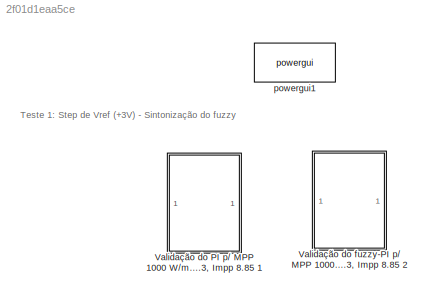
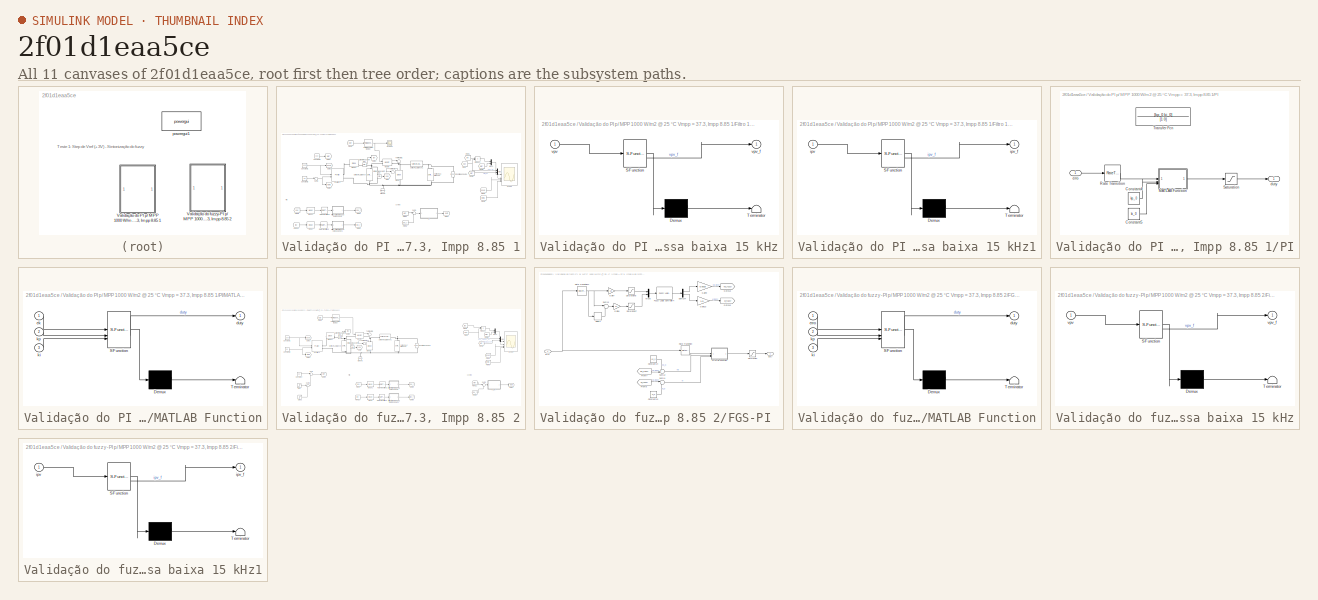
[diagram: thumbnail index - all 11 canvases of the model, root first then tree order]
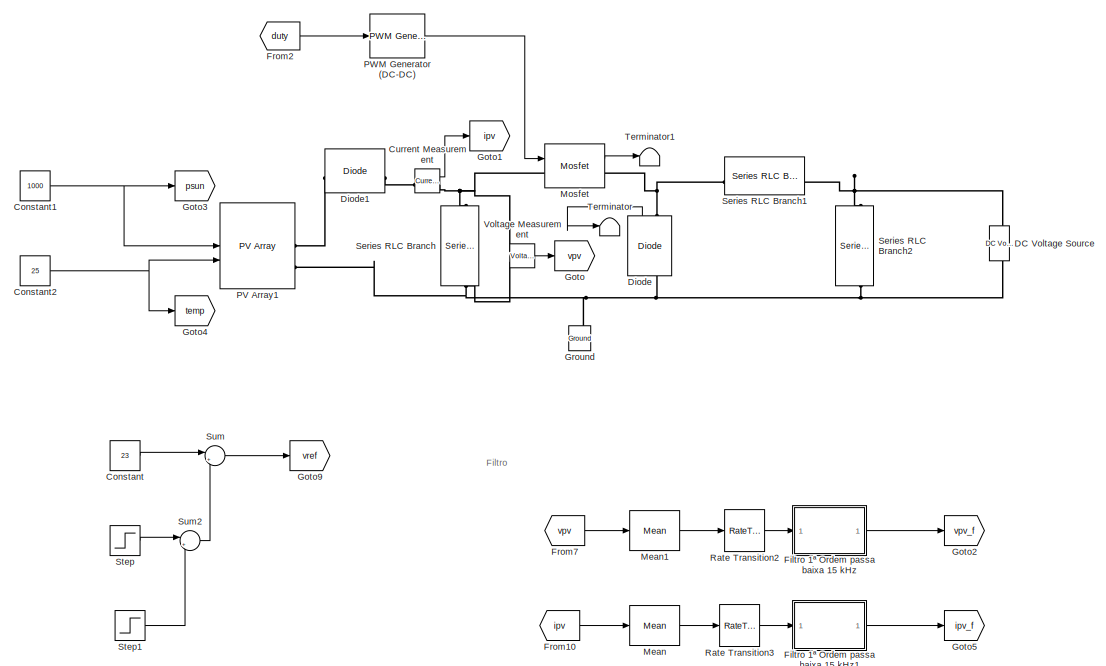
[diagram: Validação do fuzzy-PI p/ MPP 1000 W/m2 @ 25 °C Vmpp = 37.3, Impp 8.85 2 - part 1/3, left side, full height]
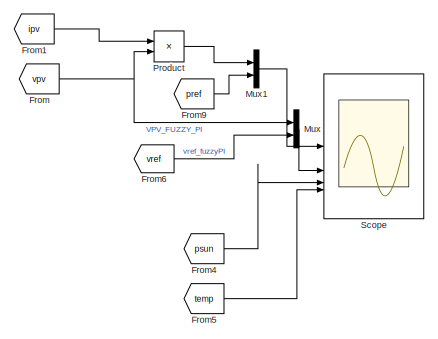
[diagram: Validação do fuzzy-PI p/ MPP 1000 W/m2 @ 25 °C Vmpp = 37.3, Impp 8.85 2 - part 2/3, middle right region]
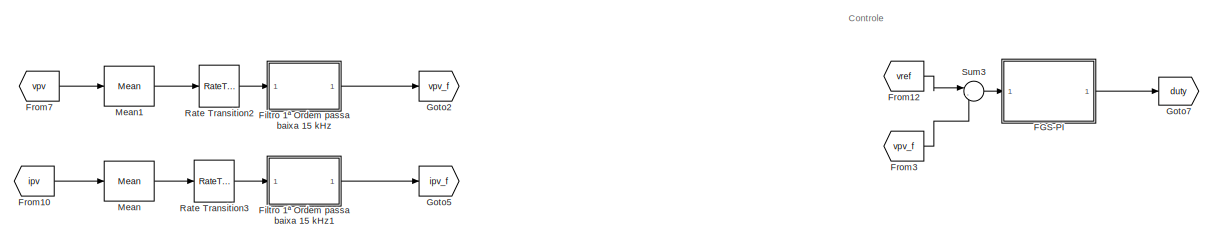
[diagram: Validação do fuzzy-PI p/ MPP 1000 W/m2 @ 25 °C Vmpp = 37.3, Impp 8.85 2 - part 3/3, bottom center region]
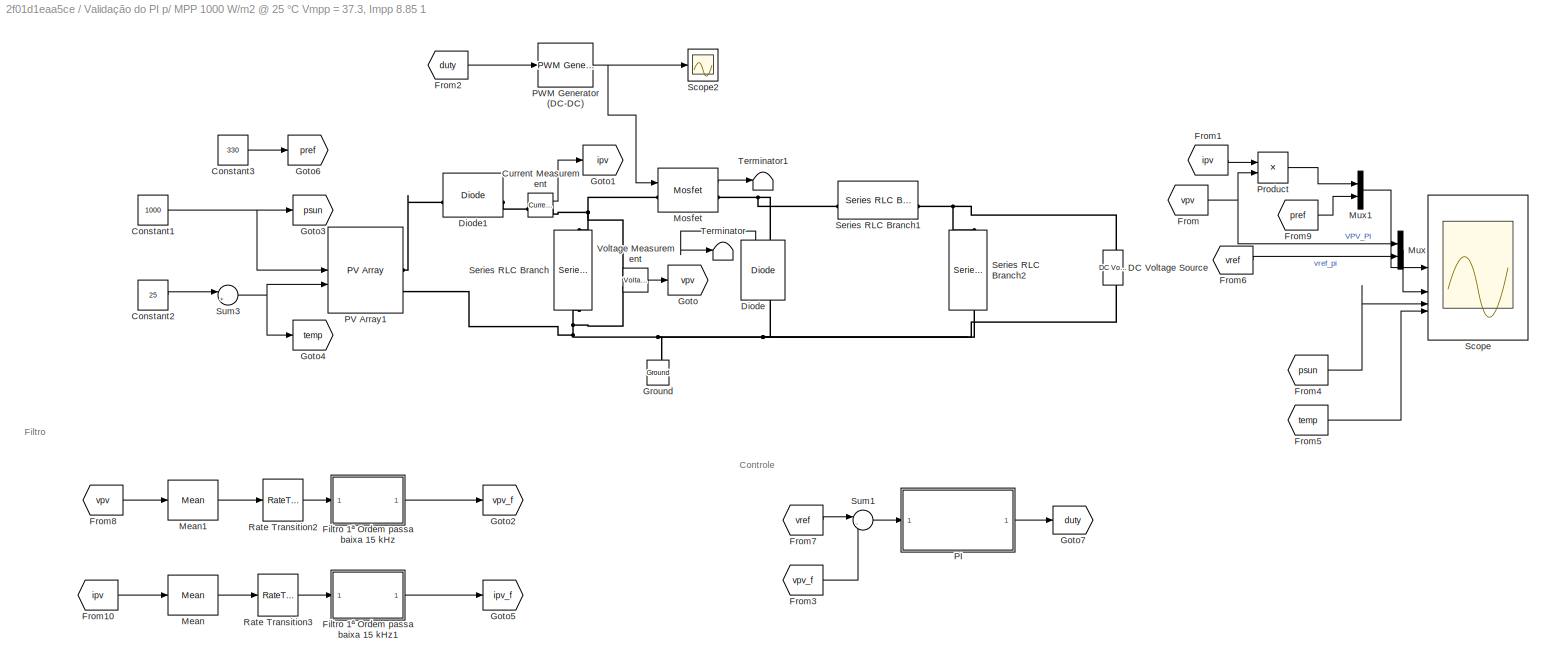
MODEL slx_2f01d1eaa5ce
KIND model
CONFIG AbsTol = auto
CONFIG EnableMultiTasking = off
CONFIG FixedStep = (1/150000)/100
CONFIG MaxStep = auto
CONFIG MinStep = auto
CONFIG RelTol = 1e-3
CONFIG SampleTimeConstraint = Unconstrained
CONFIG SolverName = FixedStepDiscrete
CONFIG StartTime = 0
CONFIG StopTime = 0.3
WORKSPACE source: mxarray member
WORKSPACE Var = 20
BLOCK [SubSystem] Validação do PI p// MPP 1000 W//m2 @ 25 °C Vmpp = 37.3, Impp 8.85 1
BLOCK [Constant] Validação do PI p// MPP 1000 W//m2 @ 25 °C Vmpp = 37.3, Impp 8.85 1/Constant1
  Value = 1000
BLOCK [Constant] Validação do PI p// MPP 1000 W//m2 @ 25 °C Vmpp = 37.3, Impp 8.85 1/Constant2
  Value = 25
BLOCK [Constant] Validação do PI p// MPP 1000 W//m2 @ 25 °C Vmpp = 37.3, Impp 8.85 1/Constant3
  Value = 330
BLOCK [Reference] Validação do PI p// MPP 1000 W//m2 @ 25 °C Vmpp = 37.3, Impp 8.85 1/Current Measurement  REF=spsCurrentMeasurementLib/Current Measurement
  SourceBlock = spsCurrentMeasurementLib/Current Measurement
  SourceType = Current Measurement
  UserDataPersistent = on
BLOCK [Reference] Validação do PI p// MPP 1000 W//m2 @ 25 °C Vmpp = 37.3, Impp 8.85 1/DC Voltage Source  REF=spsDCVoltageSourceLib/DC Voltage Source
  SourceBlock = spsDCVoltageSourceLib/DC Voltage Source
  SourceType = DC Voltage Source
BLOCK [Reference] Validação do PI p// MPP 1000 W//m2 @ 25 °C Vmpp = 37.3, Impp 8.85 1/Diode  REF=spsDiodeLib/Diode
  NameLocation = right
  SourceBlock = spsDiodeLib/Diode
  SourceType = Diode
BLOCK [Reference] Validação do PI p// MPP 1000 W//m2 @ 25 °C Vmpp = 37.3, Impp 8.85 1/Diode1  REF=spsDiodeLib/Diode
  SourceBlock = spsDiodeLib/Diode
  SourceType = Diode
BLOCK [SubSystem] Validação do PI p// MPP 1000 W//m2 @ 25 °C Vmpp = 37.3, Impp 8.85 1/Filtro 1ª Ordem passa baixa 15 kHz
  ErrorFcn = Stateflow.Translate.translate
  PermitHierarchicalResolution = ExplicitOnly
  SFBlockType = MATLAB Function
  TreatAsAtomicUnit = on
BLOCK [Demux] Validação do PI p// MPP 1000 W//m2 @ 25 °C Vmpp = 37.3, Impp 8.85 1/Filtro 1ª Ordem passa baixa 15 kHz/ Demux 
  Outputs = 1
BLOCK [S-Function] Validação do PI p// MPP 1000 W//m2 @ 25 °C Vmpp = 37.3, Impp 8.85 1/Filtro 1ª Ordem passa baixa 15 kHz/ SFunction 
  EnableBusSupport = on
  FunctionName = sf_sfun
  PortCounts = [1 2]
  SFcnIsStateOwnerBlock = off
  SFunctionDeploymentMode = off
  Tag = Stateflow S-Function 1
BLOCK [Terminator] Validação do PI p// MPP 1000 W//m2 @ 25 °C Vmpp = 37.3, Impp 8.85 1/Filtro 1ª Ordem passa baixa 15 kHz/ Terminator 
BLOCK [Inport] Validação do PI p// MPP 1000 W//m2 @ 25 °C Vmpp = 37.3, Impp 8.85 1/Filtro 1ª Ordem passa baixa 15 kHz/vpv
BLOCK [Outport] Validação do PI p// MPP 1000 W//m2 @ 25 °C Vmpp = 37.3, Impp 8.85 1/Filtro 1ª Ordem passa baixa 15 kHz/vpv_f
BLOCK [SubSystem] Validação do PI p// MPP 1000 W//m2 @ 25 °C Vmpp = 37.3, Impp 8.85 1/Filtro 1ª Ordem passa baixa 15 kHz1
  ErrorFcn = Stateflow.Translate.translate
  PermitHierarchicalResolution = ExplicitOnly
  SFBlockType = MATLAB Function
  TreatAsAtomicUnit = on
BLOCK [Demux] Validação do PI p// MPP 1000 W//m2 @ 25 °C Vmpp = 37.3, Impp 8.85 1/Filtro 1ª Ordem passa baixa 15 kHz1/ Demux 
  Outputs = 1
BLOCK [S-Function] Validação do PI p// MPP 1000 W//m2 @ 25 °C Vmpp = 37.3, Impp 8.85 1/Filtro 1ª Ordem passa baixa 15 kHz1/ SFunction 
  EnableBusSupport = on
  FunctionName = sf_sfun
  PortCounts = [1 2]
  SFcnIsStateOwnerBlock = off
  SFunctionDeploymentMode = off
  Tag = Stateflow S-Function 2
BLOCK [Terminator] Validação do PI p// MPP 1000 W//m2 @ 25 °C Vmpp = 37.3, Impp 8.85 1/Filtro 1ª Ordem passa baixa 15 kHz1/ Terminator 
BLOCK [Inport] Validação do PI p// MPP 1000 W//m2 @ 25 °C Vmpp = 37.3, Impp 8.85 1/Filtro 1ª Ordem passa baixa 15 kHz1/ipv
BLOCK [Outport] Validação do PI p// MPP 1000 W//m2 @ 25 °C Vmpp = 37.3, Impp 8.85 1/Filtro 1ª Ordem passa baixa 15 kHz1/ipv_f
BLOCK [From] Validação do PI p// MPP 1000 W//m2 @ 25 °C Vmpp = 37.3, Impp 8.85 1/From
  GotoTag = vpv
BLOCK [From] Validação do PI p// MPP 1000 W//m2 @ 25 °C Vmpp = 37.3, Impp 8.85 1/From1
  GotoTag = ipv
BLOCK [From] Validação do PI p// MPP 1000 W//m2 @ 25 °C Vmpp = 37.3, Impp 8.85 1/From10
  GotoTag = ipv
BLOCK [From] Validação do PI p// MPP 1000 W//m2 @ 25 °C Vmpp = 37.3, Impp 8.85 1/From2
  GotoTag = duty
BLOCK [From] Validação do PI p// MPP 1000 W//m2 @ 25 °C Vmpp = 37.3, Impp 8.85 1/From3
  GotoTag = vpv_f
BLOCK [From] Validação do PI p// MPP 1000 W//m2 @ 25 °C Vmpp = 37.3, Impp 8.85 1/From4
  GotoTag = psun
BLOCK [From] Validação do PI p// MPP 1000 W//m2 @ 25 °C Vmpp = 37.3, Impp 8.85 1/From5
  GotoTag = temp
BLOCK [From] Validação do PI p// MPP 1000 W//m2 @ 25 °C Vmpp = 37.3, Impp 8.85 1/From6
  GotoTag = vref
BLOCK [From] Validação do PI p// MPP 1000 W//m2 @ 25 °C Vmpp = 37.3, Impp 8.85 1/From7
  GotoTag = vref
BLOCK [From] Validação do PI p// MPP 1000 W//m2 @ 25 °C Vmpp = 37.3, Impp 8.85 1/From8
  GotoTag = vpv
BLOCK [From] Validação do PI p// MPP 1000 W//m2 @ 25 °C Vmpp = 37.3, Impp 8.85 1/From9
  GotoTag = pref
BLOCK [Goto] Validação do PI p// MPP 1000 W//m2 @ 25 °C Vmpp = 37.3, Impp 8.85 1/Goto
  GotoTag = vpv
BLOCK [Goto] Validação do PI p// MPP 1000 W//m2 @ 25 °C Vmpp = 37.3, Impp 8.85 1/Goto1
  GotoTag = ipv
BLOCK [Goto] Validação do PI p// MPP 1000 W//m2 @ 25 °C Vmpp = 37.3, Impp 8.85 1/Goto2
  GotoTag = vpv_f
BLOCK [Goto] Validação do PI p// MPP 1000 W//m2 @ 25 °C Vmpp = 37.3, Impp 8.85 1/Goto3
  GotoTag = psun
BLOCK [Goto] Validação do PI p// MPP 1000 W//m2 @ 25 °C Vmpp = 37.3, Impp 8.85 1/Goto4
  GotoTag = temp
BLOCK [Goto] Validação do PI p// MPP 1000 W//m2 @ 25 °C Vmpp = 37.3, Impp 8.85 1/Goto5
  GotoTag = ipv_f
BLOCK [Goto] Validação do PI p// MPP 1000 W//m2 @ 25 °C Vmpp = 37.3, Impp 8.85 1/Goto6
  GotoTag = pref
BLOCK [Goto] Validação do PI p// MPP 1000 W//m2 @ 25 °C Vmpp = 37.3, Impp 8.85 1/Goto7
  GotoTag = duty
BLOCK [Reference] Validação do PI p// MPP 1000 W//m2 @ 25 °C Vmpp = 37.3, Impp 8.85 1/Ground  REF=spsGroundLib/Ground
  NameLocation = right
  SourceBlock = spsGroundLib/Ground
  SourceType = Ground
BLOCK [Reference] Validação do PI p// MPP 1000 W//m2 @ 25 °C Vmpp = 37.3, Impp 8.85 1/Mean  REF=spsMeanLib/Mean
  LibrarySourceBlock = sps_lib/Sensors and Measurements/Mean
  SourceBlock = spsMeanLib/Mean
  SourceType = Mean
BLOCK [Reference] Validação do PI p// MPP 1000 W//m2 @ 25 °C Vmpp = 37.3, Impp 8.85 1/Mean1  REF=spsMeanLib/Mean
  LibrarySourceBlock = sps_lib/Sensors and Measurements/Mean
  SourceBlock = spsMeanLib/Mean
  SourceType = Mean
BLOCK [Reference] Validação do PI p// MPP 1000 W//m2 @ 25 °C Vmpp = 37.3, Impp 8.85 1/Mosfet  REF=spsMosfetLib/Mosfet
  SourceBlock = spsMosfetLib/Mosfet
  SourceType = Mosfet
BLOCK [Mux] Validação do PI p// MPP 1000 W//m2 @ 25 °C Vmpp = 37.3, Impp 8.85 1/Mux
  DisplayOption = bar
  Inputs = 2
BLOCK [Mux] Validação do PI p// MPP 1000 W//m2 @ 25 °C Vmpp = 37.3, Impp 8.85 1/Mux1
  DisplayOption = bar
  Inputs = 2
BLOCK [SubSystem] Validação do PI p// MPP 1000 W//m2 @ 25 °C Vmpp = 37.3, Impp 8.85 1/PI
BLOCK [Constant] Validação do PI p// MPP 1000 W//m2 @ 25 °C Vmpp = 37.3, Impp 8.85 1/PI/Constant4
  Value = kp_0
BLOCK [Constant] Validação do PI p// MPP 1000 W//m2 @ 25 °C Vmpp = 37.3, Impp 8.85 1/PI/Constant5
  Value = ki_0
BLOCK [SubSystem] Validação do PI p// MPP 1000 W//m2 @ 25 °C Vmpp = 37.3, Impp 8.85 1/PI/MATLAB Function
  ErrorFcn = Stateflow.Translate.translate
  PermitHierarchicalResolution = ExplicitOnly
  SFBlockType = MATLAB Function
  TreatAsAtomicUnit = on
BLOCK [Demux] Validação do PI p// MPP 1000 W//m2 @ 25 °C Vmpp = 37.3, Impp 8.85 1/PI/MATLAB Function/ Demux 
  Outputs = 1
BLOCK [S-Function] Validação do PI p// MPP 1000 W//m2 @ 25 °C Vmpp = 37.3, Impp 8.85 1/PI/MATLAB Function/ SFunction 
  EnableBusSupport = on
  FunctionName = sf_sfun
  PortCounts = [3 2]
  SFcnIsStateOwnerBlock = off
  SFunctionDeploymentMode = off
  Tag = Stateflow S-Function 4
BLOCK [Terminator] Validação do PI p// MPP 1000 W//m2 @ 25 °C Vmpp = 37.3, Impp 8.85 1/PI/MATLAB Function/ Terminator 
BLOCK [Outport] Validação do PI p// MPP 1000 W//m2 @ 25 °C Vmpp = 37.3, Impp 8.85 1/PI/MATLAB Function/duty
BLOCK [Inport] Validação do PI p// MPP 1000 W//m2 @ 25 °C Vmpp = 37.3, Impp 8.85 1/PI/MATLAB Function/ek
BLOCK [Inport] Validação do PI p// MPP 1000 W//m2 @ 25 °C Vmpp = 37.3, Impp 8.85 1/PI/MATLAB Function/ki
  Port = 3
BLOCK [Inport] Validação do PI p// MPP 1000 W//m2 @ 25 °C Vmpp = 37.3, Impp 8.85 1/PI/MATLAB Function/kp
  Port = 2
BLOCK [RateTransition] Validação do PI p// MPP 1000 W//m2 @ 25 °C Vmpp = 37.3, Impp 8.85 1/PI/Rate Transition
  OutPortSampleTime = 1/100000
BLOCK [Saturate] Validação do PI p// MPP 1000 W//m2 @ 25 °C Vmpp = 37.3, Impp 8.85 1/PI/Saturation
  LowerLimit = 0
  UpperLimit = 1
BLOCK [TransferFcn] Validação do PI p// MPP 1000 W//m2 @ 25 °C Vmpp = 37.3, Impp 8.85 1/PI/Transfer Fcn
  Commented = on
  Denominator = [1 0]
  Numerator = [kp_0 ki_0]
BLOCK [Outport] Validação do PI p// MPP 1000 W//m2 @ 25 °C Vmpp = 37.3, Impp 8.85 1/PI/duty
BLOCK [Inport] Validação do PI p// MPP 1000 W//m2 @ 25 °C Vmpp = 37.3, Impp 8.85 1/PI/erro
BLOCK [Reference] Validação do PI p// MPP 1000 W//m2 @ 25 °C Vmpp = 37.3, Impp 8.85 1/PV Array1  REF=spsPVArrayLib/PV Array
  SourceBlock = spsPVArrayLib/PV Array
  SourceType = PV array
BLOCK [Reference] Validação do PI p// MPP 1000 W//m2 @ 25 °C Vmpp = 37.3, Impp 8.85 1/PWM Generator (DC-DC)  REF=spsPWMGeneratorDCDCLib/PWM Generator
(DC-DC)
  SourceBlock = spsPWMGeneratorDCDCLib/PWM Generator\n(DC-DC)
  SourceType = PWM Generator (DC-DC)
BLOCK [Product] Validação do PI p// MPP 1000 W//m2 @ 25 °C Vmpp = 37.3, Impp 8.85 1/Product
BLOCK [RateTransition] Validação do PI p// MPP 1000 W//m2 @ 25 °C Vmpp = 37.3, Impp 8.85 1/Rate Transition2
  OutPortSampleTime = 1/150000
BLOCK [RateTransition] Validação do PI p// MPP 1000 W//m2 @ 25 °C Vmpp = 37.3, Impp 8.85 1/Rate Transition3
  OutPortSampleTime = 1/150000
BLOCK [Scope] Validação do PI p// MPP 1000 W//m2 @ 25 °C Vmpp = 37.3, Impp 8.85 1/Scope
  Floating = off
  NumInputPorts = 4
  ScopeSpecificationString = Simulink.scopes.TimeScopeBlockCfg('CurrentConfiguration', extmgr.ConfigurationSet(extmgr.Configuration('Core','General UI',true),extmgr.Configuration('Core','Source UI',true),extmgr.Configuration('Sources','WiredSimulink',true),extmgr.Configuration('Visuals','Time Domain',true,'SerializedDisplays',{struct('MinYLimReal','-40.48892','MaxYLimReal','393.09713','YLabelReal','','MinYLimMag','0.00000','M...<+3868ch>
BLOCK [Scope] Validação do PI p// MPP 1000 W//m2 @ 25 °C Vmpp = 37.3, Impp 8.85 1/Scope2
  Floating = off
  NumInputPorts = 1
  ScopeSpecificationString = Simulink.scopes.TimeScopeBlockCfg('CurrentConfiguration', extmgr.ConfigurationSet(extmgr.Configuration('Core','General UI',true),extmgr.Configuration('Core','Source UI',true),extmgr.Configuration('Sources','WiredSimulink',true,'DataLoggingVariableName','ScopeData1'),extmgr.Configuration('Visuals','Time Domain',true,'SerializedDisplays',{struct('MinYLimReal','-0.125','MaxYLimReal','1.125','YLabelRe...<+1749ch>
BLOCK [Reference] Validação do PI p// MPP 1000 W//m2 @ 25 °C Vmpp = 37.3, Impp 8.85 1/Series RLC Branch  REF=spsSeriesRLCBranchLib/Series RLC Branch
  NameLocation = left
  SourceBlock = spsSeriesRLCBranchLib/Series RLC Branch
  SourceType = Series RLC Branch
BLOCK [Reference] Validação do PI p// MPP 1000 W//m2 @ 25 °C Vmpp = 37.3, Impp 8.85 1/Series RLC Branch1  REF=spsSeriesRLCBranchLib/Series RLC Branch
  SourceBlock = spsSeriesRLCBranchLib/Series RLC Branch
  SourceType = Series RLC Branch
BLOCK [Reference] Validação do PI p// MPP 1000 W//m2 @ 25 °C Vmpp = 37.3, Impp 8.85 1/Series RLC Branch2  REF=spsSeriesRLCBranchLib/Series RLC Branch
  NameLocation = left
  SourceBlock = spsSeriesRLCBranchLib/Series RLC Branch
  SourceType = Series RLC Branch
BLOCK [Sum] Validação do PI p// MPP 1000 W//m2 @ 25 °C Vmpp = 37.3, Impp 8.85 1/Sum1
  Inputs = |-+
BLOCK [Sum] Validação do PI p// MPP 1000 W//m2 @ 25 °C Vmpp = 37.3, Impp 8.85 1/Sum3
  Inputs = |++
BLOCK [Terminator] Validação do PI p// MPP 1000 W//m2 @ 25 °C Vmpp = 37.3, Impp 8.85 1/Terminator
BLOCK [Terminator] Validação do PI p// MPP 1000 W//m2 @ 25 °C Vmpp = 37.3, Impp 8.85 1/Terminator1
BLOCK [Reference] Validação do PI p// MPP 1000 W//m2 @ 25 °C Vmpp = 37.3, Impp 8.85 1/Voltage Measurement  REF=spsVoltageMeasurementLib/Voltage Measurement
  SourceBlock = spsVoltageMeasurementLib/Voltage Measurement
  SourceType = Voltage Measurement
  UserDataPersistent = on
BLOCK [SubSystem] Validação do fuzzy-PI p// MPP 1000 W//m2 @ 25 °C Vmpp = 37.3, Impp 8.85 2
BLOCK [Constant] Validação do fuzzy-PI p// MPP 1000 W//m2 @ 25 °C Vmpp = 37.3, Impp 8.85 2/Constant
  Value = 23
BLOCK [Constant] Validação do fuzzy-PI p// MPP 1000 W//m2 @ 25 °C Vmpp = 37.3, Impp 8.85 2/Constant1
  Value = 1000
BLOCK [Constant] Validação do fuzzy-PI p// MPP 1000 W//m2 @ 25 °C Vmpp = 37.3, Impp 8.85 2/Constant2
  Value = 25
BLOCK [Reference] Validação do fuzzy-PI p// MPP 1000 W//m2 @ 25 °C Vmpp = 37.3, Impp 8.85 2/Current Measurement  REF=spsCurrentMeasurementLib/Current Measurement
  SourceBlock = spsCurrentMeasurementLib/Current Measurement
  SourceType = Current Measurement
  UserDataPersistent = on
BLOCK [Reference] Validação do fuzzy-PI p// MPP 1000 W//m2 @ 25 °C Vmpp = 37.3, Impp 8.85 2/DC Voltage Source  REF=spsDCVoltageSourceLib/DC Voltage Source
  SourceBlock = spsDCVoltageSourceLib/DC Voltage Source
  SourceType = DC Voltage Source
BLOCK [Reference] Validação do fuzzy-PI p// MPP 1000 W//m2 @ 25 °C Vmpp = 37.3, Impp 8.85 2/Diode  REF=spsDiodeLib/Diode
  NameLocation = right
  SourceBlock = spsDiodeLib/Diode
  SourceType = Diode
BLOCK [Reference] Validação do fuzzy-PI p// MPP 1000 W//m2 @ 25 °C Vmpp = 37.3, Impp 8.85 2/Diode1  REF=spsDiodeLib/Diode
  SourceBlock = spsDiodeLib/Diode
  SourceType = Diode
BLOCK [SubSystem] Validação do fuzzy-PI p// MPP 1000 W//m2 @ 25 °C Vmpp = 37.3, Impp 8.85 2/FGS-PI 
BLOCK [Constant] Validação do fuzzy-PI p// MPP 1000 W//m2 @ 25 °C Vmpp = 37.3, Impp 8.85 2/FGS-PI /Constant13
  Value = ki_0
BLOCK [Constant] Validação do fuzzy-PI p// MPP 1000 W//m2 @ 25 °C Vmpp = 37.3, Impp 8.85 2/FGS-PI /Constant14
  Value = kp_0
BLOCK [Delay] Validação do fuzzy-PI p// MPP 1000 W//m2 @ 25 °C Vmpp = 37.3, Impp 8.85 2/FGS-PI /Delay1
  DelayLength = 1
  InputPortMap = u0
BLOCK [Demux] Validação do fuzzy-PI p// MPP 1000 W//m2 @ 25 °C Vmpp = 37.3, Impp 8.85 2/FGS-PI /Demux4
  Outputs = 2
BLOCK [From] Validação do fuzzy-PI p// MPP 1000 W//m2 @ 25 °C Vmpp = 37.3, Impp 8.85 2/FGS-PI /From7
  GotoTag = kp_fuzzy
BLOCK [From] Validação do fuzzy-PI p// MPP 1000 W//m2 @ 25 °C Vmpp = 37.3, Impp 8.85 2/FGS-PI /From8
  GotoTag = ki_fuzzy
BLOCK [Reference] Validação do fuzzy-PI p// MPP 1000 W//m2 @ 25 °C Vmpp = 37.3, Impp 8.85 2/FGS-PI /Fuzzy Logic Controller4  REF=fuzblock/Fuzzy Logic   (lib defined in mdl_858b3b3e7478)
Controller
  SourceBlock = fuzblock/Fuzzy Logic \nController
  SourceType = Fuzzy Inference System
BLOCK [Gain] Validação do fuzzy-PI p// MPP 1000 W//m2 @ 25 °C Vmpp = 37.3, Impp 8.85 2/FGS-PI /Gain10
  Gain = 1.5
BLOCK [Gain] Validação do fuzzy-PI p// MPP 1000 W//m2 @ 25 °C Vmpp = 37.3, Impp 8.85 2/FGS-PI /Gain7
  Gain = 1/3
BLOCK [Gain] Validação do fuzzy-PI p// MPP 1000 W//m2 @ 25 °C Vmpp = 37.3, Impp 8.85 2/FGS-PI /Gain8
  Gain = 0.1
BLOCK [Gain] Validação do fuzzy-PI p// MPP 1000 W//m2 @ 25 °C Vmpp = 37.3, Impp 8.85 2/FGS-PI /Gain9
  Gain = 0.0015
BLOCK [Goto] Validação do fuzzy-PI p// MPP 1000 W//m2 @ 25 °C Vmpp = 37.3, Impp 8.85 2/FGS-PI /Goto13
  GotoTag = kp_fuzzy
BLOCK [Goto] Validação do fuzzy-PI p// MPP 1000 W//m2 @ 25 °C Vmpp = 37.3, Impp 8.85 2/FGS-PI /Goto15
  GotoTag = ki_fuzzy
BLOCK [SubSystem] Validação do fuzzy-PI p// MPP 1000 W//m2 @ 25 °C Vmpp = 37.3, Impp 8.85 2/FGS-PI /MATLAB Function
  ErrorFcn = Stateflow.Translate.translate
  PermitHierarchicalResolution = ExplicitOnly
  SFBlockType = MATLAB Function
  TreatAsAtomicUnit = on
BLOCK [Demux] Validação do fuzzy-PI p// MPP 1000 W//m2 @ 25 °C Vmpp = 37.3, Impp 8.85 2/FGS-PI /MATLAB Function/ Demux 
  Outputs = 1
BLOCK [S-Function] Validação do fuzzy-PI p// MPP 1000 W//m2 @ 25 °C Vmpp = 37.3, Impp 8.85 2/FGS-PI /MATLAB Function/ SFunction 
  EnableBusSupport = on
  FunctionName = sf_sfun
  PortCounts = [3 2]
  SFcnIsStateOwnerBlock = off
  SFunctionDeploymentMode = off
  Tag = Stateflow S-Function 7
BLOCK [Terminator] Validação do fuzzy-PI p// MPP 1000 W//m2 @ 25 °C Vmpp = 37.3, Impp 8.85 2/FGS-PI /MATLAB Function/ Terminator 
BLOCK [Outport] Validação do fuzzy-PI p// MPP 1000 W//m2 @ 25 °C Vmpp = 37.3, Impp 8.85 2/FGS-PI /MATLAB Function/duty
BLOCK [Inport] Validação do fuzzy-PI p// MPP 1000 W//m2 @ 25 °C Vmpp = 37.3, Impp 8.85 2/FGS-PI /MATLAB Function/erro
BLOCK [Inport] Validação do fuzzy-PI p// MPP 1000 W//m2 @ 25 °C Vmpp = 37.3, Impp 8.85 2/FGS-PI /MATLAB Function/ki
  Port = 3
BLOCK [Inport] Validação do fuzzy-PI p// MPP 1000 W//m2 @ 25 °C Vmpp = 37.3, Impp 8.85 2/FGS-PI /MATLAB Function/kp
  Port = 2
BLOCK [Mux] Validação do fuzzy-PI p// MPP 1000 W//m2 @ 25 °C Vmpp = 37.3, Impp 8.85 2/FGS-PI /Mux6
  DisplayOption = bar
  Inputs = 2
BLOCK [RateTransition] Validação do fuzzy-PI p// MPP 1000 W//m2 @ 25 °C Vmpp = 37.3, Impp 8.85 2/FGS-PI /Rate Transition
  OutPortSampleTime = 1/150000
BLOCK [RateTransition] Validação do fuzzy-PI p// MPP 1000 W//m2 @ 25 °C Vmpp = 37.3, Impp 8.85 2/FGS-PI /Rate Transition7
  OutPortSampleTime = 20e-6
BLOCK [Saturate] Validação do fuzzy-PI p// MPP 1000 W//m2 @ 25 °C Vmpp = 37.3, Impp 8.85 2/FGS-PI /Saturation
  LowerLimit = 0
  UpperLimit = 1
BLOCK [Saturate] Validação do fuzzy-PI p// MPP 1000 W//m2 @ 25 °C Vmpp = 37.3, Impp 8.85 2/FGS-PI /Saturation7
  LowerLimit = -1
  UpperLimit = 1
BLOCK [Saturate] Validação do fuzzy-PI p// MPP 1000 W//m2 @ 25 °C Vmpp = 37.3, Impp 8.85 2/FGS-PI /Saturation8
  LowerLimit = -1
  UpperLimit = 1
BLOCK [Sum] Validação do fuzzy-PI p// MPP 1000 W//m2 @ 25 °C Vmpp = 37.3, Impp 8.85 2/FGS-PI /Sum11
  Inputs = |++
BLOCK [Sum] Validação do fuzzy-PI p// MPP 1000 W//m2 @ 25 °C Vmpp = 37.3, Impp 8.85 2/FGS-PI /Sum12
  Inputs = ++|
BLOCK [Sum] Validação do fuzzy-PI p// MPP 1000 W//m2 @ 25 °C Vmpp = 37.3, Impp 8.85 2/FGS-PI /Sum13
  Inputs = |+-
BLOCK [Outport] Validação do fuzzy-PI p// MPP 1000 W//m2 @ 25 °C Vmpp = 37.3, Impp 8.85 2/FGS-PI /duty
BLOCK [Inport] Validação do fuzzy-PI p// MPP 1000 W//m2 @ 25 °C Vmpp = 37.3, Impp 8.85 2/FGS-PI /erro
BLOCK [SubSystem] Validação do fuzzy-PI p// MPP 1000 W//m2 @ 25 °C Vmpp = 37.3, Impp 8.85 2/Filtro 1ª Ordem passa baixa 15 kHz
  ErrorFcn = Stateflow.Translate.translate
  PermitHierarchicalResolution = ExplicitOnly
  SFBlockType = MATLAB Function
  TreatAsAtomicUnit = on
BLOCK [Demux] Validação do fuzzy-PI p// MPP 1000 W//m2 @ 25 °C Vmpp = 37.3, Impp 8.85 2/Filtro 1ª Ordem passa baixa 15 kHz/ Demux 
  Outputs = 1
BLOCK [S-Function] Validação do fuzzy-PI p// MPP 1000 W//m2 @ 25 °C Vmpp = 37.3, Impp 8.85 2/Filtro 1ª Ordem passa baixa 15 kHz/ SFunction 
  EnableBusSupport = on
  FunctionName = sf_sfun
  PortCounts = [1 2]
  SFcnIsStateOwnerBlock = off
  SFunctionDeploymentMode = off
  Tag = Stateflow S-Function 22
BLOCK [Terminator] Validação do fuzzy-PI p// MPP 1000 W//m2 @ 25 °C Vmpp = 37.3, Impp 8.85 2/Filtro 1ª Ordem passa baixa 15 kHz/ Terminator 
BLOCK [Inport] Validação do fuzzy-PI p// MPP 1000 W//m2 @ 25 °C Vmpp = 37.3, Impp 8.85 2/Filtro 1ª Ordem passa baixa 15 kHz/vpv
BLOCK [Outport] Validação do fuzzy-PI p// MPP 1000 W//m2 @ 25 °C Vmpp = 37.3, Impp 8.85 2/Filtro 1ª Ordem passa baixa 15 kHz/vpv_f
BLOCK [SubSystem] Validação do fuzzy-PI p// MPP 1000 W//m2 @ 25 °C Vmpp = 37.3, Impp 8.85 2/Filtro 1ª Ordem passa baixa 15 kHz1
  ErrorFcn = Stateflow.Translate.translate
  PermitHierarchicalResolution = ExplicitOnly
  SFBlockType = MATLAB Function
  TreatAsAtomicUnit = on
BLOCK [Demux] Validação do fuzzy-PI p// MPP 1000 W//m2 @ 25 °C Vmpp = 37.3, Impp 8.85 2/Filtro 1ª Ordem passa baixa 15 kHz1/ Demux 
  Outputs = 1
BLOCK [S-Function] Validação do fuzzy-PI p// MPP 1000 W//m2 @ 25 °C Vmpp = 37.3, Impp 8.85 2/Filtro 1ª Ordem passa baixa 15 kHz1/ SFunction 
  EnableBusSupport = on
  FunctionName = sf_sfun
  PortCounts = [1 2]
  SFcnIsStateOwnerBlock = off
  SFunctionDeploymentMode = off
  Tag = Stateflow S-Function 23
BLOCK [Terminator] Validação do fuzzy-PI p// MPP 1000 W//m2 @ 25 °C Vmpp = 37.3, Impp 8.85 2/Filtro 1ª Ordem passa baixa 15 kHz1/ Terminator 
BLOCK [Inport] Validação do fuzzy-PI p// MPP 1000 W//m2 @ 25 °C Vmpp = 37.3, Impp 8.85 2/Filtro 1ª Ordem passa baixa 15 kHz1/ipv
BLOCK [Outport] Validação do fuzzy-PI p// MPP 1000 W//m2 @ 25 °C Vmpp = 37.3, Impp 8.85 2/Filtro 1ª Ordem passa baixa 15 kHz1/ipv_f
BLOCK [From] Validação do fuzzy-PI p// MPP 1000 W//m2 @ 25 °C Vmpp = 37.3, Impp 8.85 2/From
  GotoTag = vpv
BLOCK [From] Validação do fuzzy-PI p// MPP 1000 W//m2 @ 25 °C Vmpp = 37.3, Impp 8.85 2/From1
  GotoTag = ipv
BLOCK [From] Validação do fuzzy-PI p// MPP 1000 W//m2 @ 25 °C Vmpp = 37.3, Impp 8.85 2/From10
  GotoTag = ipv
BLOCK [From] Validação do fuzzy-PI p// MPP 1000 W//m2 @ 25 °C Vmpp = 37.3, Impp 8.85 2/From12
  GotoTag = vref
BLOCK [From] Validação do fuzzy-PI p// MPP 1000 W//m2 @ 25 °C Vmpp = 37.3, Impp 8.85 2/From2
  GotoTag = duty
BLOCK [From] Validação do fuzzy-PI p// MPP 1000 W//m2 @ 25 °C Vmpp = 37.3, Impp 8.85 2/From3
  GotoTag = vpv_f
BLOCK [From] Validação do fuzzy-PI p// MPP 1000 W//m2 @ 25 °C Vmpp = 37.3, Impp 8.85 2/From4
  GotoTag = psun
BLOCK [From] Validação do fuzzy-PI p// MPP 1000 W//m2 @ 25 °C Vmpp = 37.3, Impp 8.85 2/From5
  GotoTag = temp
BLOCK [From] Validação do fuzzy-PI p// MPP 1000 W//m2 @ 25 °C Vmpp = 37.3, Impp 8.85 2/From6
  GotoTag = vref
BLOCK [From] Validação do fuzzy-PI p// MPP 1000 W//m2 @ 25 °C Vmpp = 37.3, Impp 8.85 2/From7
  GotoTag = vpv
BLOCK [From] Validação do fuzzy-PI p// MPP 1000 W//m2 @ 25 °C Vmpp = 37.3, Impp 8.85 2/From9
  GotoTag = pref
BLOCK [Goto] Validação do fuzzy-PI p// MPP 1000 W//m2 @ 25 °C Vmpp = 37.3, Impp 8.85 2/Goto
  GotoTag = vpv
BLOCK [Goto] Validação do fuzzy-PI p// MPP 1000 W//m2 @ 25 °C Vmpp = 37.3, Impp 8.85 2/Goto1
  GotoTag = ipv
BLOCK [Goto] Validação do fuzzy-PI p// MPP 1000 W//m2 @ 25 °C Vmpp = 37.3, Impp 8.85 2/Goto2
  GotoTag = vpv_f
BLOCK [Goto] Validação do fuzzy-PI p// MPP 1000 W//m2 @ 25 °C Vmpp = 37.3, Impp 8.85 2/Goto3
  GotoTag = psun
BLOCK [Goto] Validação do fuzzy-PI p// MPP 1000 W//m2 @ 25 °C Vmpp = 37.3, Impp 8.85 2/Goto4
  GotoTag = temp
BLOCK [Goto] Validação do fuzzy-PI p// MPP 1000 W//m2 @ 25 °C Vmpp = 37.3, Impp 8.85 2/Goto5
  GotoTag = ipv_f
BLOCK [Goto] Validação do fuzzy-PI p// MPP 1000 W//m2 @ 25 °C Vmpp = 37.3, Impp 8.85 2/Goto7
  GotoTag = duty
BLOCK [Goto] Validação do fuzzy-PI p// MPP 1000 W//m2 @ 25 °C Vmpp = 37.3, Impp 8.85 2/Goto9
  GotoTag = vref
BLOCK [Reference] Validação do fuzzy-PI p// MPP 1000 W//m2 @ 25 °C Vmpp = 37.3, Impp 8.85 2/Ground  REF=spsGroundLib/Ground
  NameLocation = right
  SourceBlock = spsGroundLib/Ground
  SourceType = Ground
BLOCK [Reference] Validação do fuzzy-PI p// MPP 1000 W//m2 @ 25 °C Vmpp = 37.3, Impp 8.85 2/Mean  REF=spsMeanLib/Mean
  LibrarySourceBlock = sps_lib/Sensors and Measurements/Mean
  SourceBlock = spsMeanLib/Mean
  SourceType = Mean
BLOCK [Reference] Validação do fuzzy-PI p// MPP 1000 W//m2 @ 25 °C Vmpp = 37.3, Impp 8.85 2/Mean1  REF=spsMeanLib/Mean
  LibrarySourceBlock = sps_lib/Sensors and Measurements/Mean
  SourceBlock = spsMeanLib/Mean
  SourceType = Mean
BLOCK [Reference] Validação do fuzzy-PI p// MPP 1000 W//m2 @ 25 °C Vmpp = 37.3, Impp 8.85 2/Mosfet  REF=spsMosfetLib/Mosfet
  SourceBlock = spsMosfetLib/Mosfet
  SourceType = Mosfet
BLOCK [Mux] Validação do fuzzy-PI p// MPP 1000 W//m2 @ 25 °C Vmpp = 37.3, Impp 8.85 2/Mux
  DisplayOption = bar
  Inputs = 2
BLOCK [Mux] Validação do fuzzy-PI p// MPP 1000 W//m2 @ 25 °C Vmpp = 37.3, Impp 8.85 2/Mux1
  DisplayOption = bar
  Inputs = 2
BLOCK [Reference] Validação do fuzzy-PI p// MPP 1000 W//m2 @ 25 °C Vmpp = 37.3, Impp 8.85 2/PV Array1  REF=spsPVArrayLib/PV Array
  SourceBlock = spsPVArrayLib/PV Array
  SourceType = PV array
BLOCK [Reference] Validação do fuzzy-PI p// MPP 1000 W//m2 @ 25 °C Vmpp = 37.3, Impp 8.85 2/PWM Generator (DC-DC)  REF=spsPWMGeneratorDCDCLib/PWM Generator
(DC-DC)
  SourceBlock = spsPWMGeneratorDCDCLib/PWM Generator\n(DC-DC)
  SourceType = PWM Generator (DC-DC)
BLOCK [Product] Validação do fuzzy-PI p// MPP 1000 W//m2 @ 25 °C Vmpp = 37.3, Impp 8.85 2/Product
BLOCK [RateTransition] Validação do fuzzy-PI p// MPP 1000 W//m2 @ 25 °C Vmpp = 37.3, Impp 8.85 2/Rate Transition2
  OutPortSampleTime = 1/150000
BLOCK [RateTransition] Validação do fuzzy-PI p// MPP 1000 W//m2 @ 25 °C Vmpp = 37.3, Impp 8.85 2/Rate Transition3
  OutPortSampleTime = 1/150000
BLOCK [Scope] Validação do fuzzy-PI p// MPP 1000 W//m2 @ 25 °C Vmpp = 37.3, Impp 8.85 2/Scope
  Floating = off
  NumInputPorts = 4
  ScopeSpecificationString = Simulink.scopes.TimeScopeBlockCfg('CurrentConfiguration', extmgr.ConfigurationSet(extmgr.Configuration('Core','General UI',true),extmgr.Configuration('Core','Source UI',true),extmgr.Configuration('Sources','WiredSimulink',true),extmgr.Configuration('Visuals','Time Domain',true,'SerializedDisplays',{struct('MinYLimReal','-39.57363','MaxYLimReal','371.06374','YLabelReal','','MinYLimMag','0.00000','M...<+3516ch>
BLOCK [Reference] Validação do fuzzy-PI p// MPP 1000 W//m2 @ 25 °C Vmpp = 37.3, Impp 8.85 2/Series RLC Branch  REF=spsSeriesRLCBranchLib/Series RLC Branch
  NameLocation = left
  SourceBlock = spsSeriesRLCBranchLib/Series RLC Branch
  SourceType = Series RLC Branch
BLOCK [Reference] Validação do fuzzy-PI p// MPP 1000 W//m2 @ 25 °C Vmpp = 37.3, Impp 8.85 2/Series RLC Branch1  REF=spsSeriesRLCBranchLib/Series RLC Branch
  SourceBlock = spsSeriesRLCBranchLib/Series RLC Branch
  SourceType = Series RLC Branch
BLOCK [Reference] Validação do fuzzy-PI p// MPP 1000 W//m2 @ 25 °C Vmpp = 37.3, Impp 8.85 2/Series RLC Branch2  REF=spsSeriesRLCBranchLib/Series RLC Branch
  NameLocation = left
  SourceBlock = spsSeriesRLCBranchLib/Series RLC Branch
  SourceType = Series RLC Branch
BLOCK [Step] Validação do fuzzy-PI p// MPP 1000 W//m2 @ 25 °C Vmpp = 37.3, Impp 8.85 2/Step
  After = 3
  SampleTime = 0
  Time = 0.12
BLOCK [Step] Validação do fuzzy-PI p// MPP 1000 W//m2 @ 25 °C Vmpp = 37.3, Impp 8.85 2/Step1
  After = -3
  SampleTime = 0
  Time = 0.22
BLOCK [Sum] Validação do fuzzy-PI p// MPP 1000 W//m2 @ 25 °C Vmpp = 37.3, Impp 8.85 2/Sum
  Inputs = |++
BLOCK [Sum] Validação do fuzzy-PI p// MPP 1000 W//m2 @ 25 °C Vmpp = 37.3, Impp 8.85 2/Sum2
  Inputs = |++
BLOCK [Sum] Validação do fuzzy-PI p// MPP 1000 W//m2 @ 25 °C Vmpp = 37.3, Impp 8.85 2/Sum3
  Inputs = |-+
BLOCK [Terminator] Validação do fuzzy-PI p// MPP 1000 W//m2 @ 25 °C Vmpp = 37.3, Impp 8.85 2/Terminator
BLOCK [Terminator] Validação do fuzzy-PI p// MPP 1000 W//m2 @ 25 °C Vmpp = 37.3, Impp 8.85 2/Terminator1
BLOCK [Reference] Validação do fuzzy-PI p// MPP 1000 W//m2 @ 25 °C Vmpp = 37.3, Impp 8.85 2/Voltage Measurement  REF=spsVoltageMeasurementLib/Voltage Measurement
  SourceBlock = spsVoltageMeasurementLib/Voltage Measurement
  SourceType = Voltage Measurement
  UserDataPersistent = on
BLOCK [Reference] powergui1  REF=spspowerguiLib/powergui
  Priority = 1
  SourceBlock = spspowerguiLib/powergui
  SourceType = PSB option menu block
ANNOTATION (root): Teste 1: Step de Vref (+3V) - Sintonização do fuzzy
ANNOTATION Validação do PI p// MPP 1000 W//m2 @ 25 °C Vmpp = 37.3, Impp 8.85 1: Controle
ANNOTATION Validação do PI p// MPP 1000 W//m2 @ 25 °C Vmpp = 37.3, Impp 8.85 1: Filtro
ANNOTATION Validação do fuzzy-PI p// MPP 1000 W//m2 @ 25 °C Vmpp = 37.3, Impp 8.85 2: Controle
ANNOTATION Validação do fuzzy-PI p// MPP 1000 W//m2 @ 25 °C Vmpp = 37.3, Impp 8.85 2: Filtro
NET Validação do PI p// MPP 1000 W//m2 @ 25 °C Vmpp = 37.3, Impp 8.85 1/Constant1:1 -> Validação do PI p// MPP 1000 W//m2 @ 25 °C Vmpp = 37.3, Impp 8.85 1/Goto3:1, Validação do PI p// MPP 1000 W//m2 @ 25 °C Vmpp = 37.3, Impp 8.85 1/PV Array1:1
LINE Validação do PI p// MPP 1000 W//m2 @ 25 °C Vmpp = 37.3, Impp 8.85 1/Constant2:1 -> Validação do PI p// MPP 1000 W//m2 @ 25 °C Vmpp = 37.3, Impp 8.85 1/Sum3:1
LINE Validação do PI p// MPP 1000 W//m2 @ 25 °C Vmpp = 37.3, Impp 8.85 1/Constant3:1 -> Validação do PI p// MPP 1000 W//m2 @ 25 °C Vmpp = 37.3, Impp 8.85 1/Goto6:1
LINE Validação do PI p// MPP 1000 W//m2 @ 25 °C Vmpp = 37.3, Impp 8.85 1/Current Measurement:1 -> Validação do PI p// MPP 1000 W//m2 @ 25 °C Vmpp = 37.3, Impp 8.85 1/Goto1:1
LINE Validação do PI p// MPP 1000 W//m2 @ 25 °C Vmpp = 37.3, Impp 8.85 1/Diode:1 -> Validação do PI p// MPP 1000 W//m2 @ 25 °C Vmpp = 37.3, Impp 8.85 1/Terminator:1
LINE Validação do PI p// MPP 1000 W//m2 @ 25 °C Vmpp = 37.3, Impp 8.85 1/Filtro 1ª Ordem passa baixa 15 kHz1:1 -> Validação do PI p// MPP 1000 W//m2 @ 25 °C Vmpp = 37.3, Impp 8.85 1/Goto5:1
LINE Validação do PI p// MPP 1000 W//m2 @ 25 °C Vmpp = 37.3, Impp 8.85 1/Filtro 1ª Ordem passa baixa 15 kHz:1 -> Validação do PI p// MPP 1000 W//m2 @ 25 °C Vmpp = 37.3, Impp 8.85 1/Goto2:1
LINE Validação do PI p// MPP 1000 W//m2 @ 25 °C Vmpp = 37.3, Impp 8.85 1/From10:1 -> Validação do PI p// MPP 1000 W//m2 @ 25 °C Vmpp = 37.3, Impp 8.85 1/Mean:1
LINE Validação do PI p// MPP 1000 W//m2 @ 25 °C Vmpp = 37.3, Impp 8.85 1/From1:1 -> Validação do PI p// MPP 1000 W//m2 @ 25 °C Vmpp = 37.3, Impp 8.85 1/Product:1
LINE Validação do PI p// MPP 1000 W//m2 @ 25 °C Vmpp = 37.3, Impp 8.85 1/From2:1 -> Validação do PI p// MPP 1000 W//m2 @ 25 °C Vmpp = 37.3, Impp 8.85 1/PWM Generator (DC-DC):1
LINE Validação do PI p// MPP 1000 W//m2 @ 25 °C Vmpp = 37.3, Impp 8.85 1/From3:1 -> Validação do PI p// MPP 1000 W//m2 @ 25 °C Vmpp = 37.3, Impp 8.85 1/Sum1:2
LINE Validação do PI p// MPP 1000 W//m2 @ 25 °C Vmpp = 37.3, Impp 8.85 1/From4:1 -> Validação do PI p// MPP 1000 W//m2 @ 25 °C Vmpp = 37.3, Impp 8.85 1/Scope:3
LINE Validação do PI p// MPP 1000 W//m2 @ 25 °C Vmpp = 37.3, Impp 8.85 1/From5:1 -> Validação do PI p// MPP 1000 W//m2 @ 25 °C Vmpp = 37.3, Impp 8.85 1/Scope:4
LINE Validação do PI p// MPP 1000 W//m2 @ 25 °C Vmpp = 37.3, Impp 8.85 1/From6:1 -> Validação do PI p// MPP 1000 W//m2 @ 25 °C Vmpp = 37.3, Impp 8.85 1/Mux:2
LINE Validação do PI p// MPP 1000 W//m2 @ 25 °C Vmpp = 37.3, Impp 8.85 1/From7:1 -> Validação do PI p// MPP 1000 W//m2 @ 25 °C Vmpp = 37.3, Impp 8.85 1/Sum1:1
LINE Validação do PI p// MPP 1000 W//m2 @ 25 °C Vmpp = 37.3, Impp 8.85 1/From8:1 -> Validação do PI p// MPP 1000 W//m2 @ 25 °C Vmpp = 37.3, Impp 8.85 1/Mean1:1
LINE Validação do PI p// MPP 1000 W//m2 @ 25 °C Vmpp = 37.3, Impp 8.85 1/From9:1 -> Validação do PI p// MPP 1000 W//m2 @ 25 °C Vmpp = 37.3, Impp 8.85 1/Mux1:2
NET Validação do PI p// MPP 1000 W//m2 @ 25 °C Vmpp = 37.3, Impp 8.85 1/From:1 -> Validação do PI p// MPP 1000 W//m2 @ 25 °C Vmpp = 37.3, Impp 8.85 1/Mux:1, Validação do PI p// MPP 1000 W//m2 @ 25 °C Vmpp = 37.3, Impp 8.85 1/Product:2
LINE Validação do PI p// MPP 1000 W//m2 @ 25 °C Vmpp = 37.3, Impp 8.85 1/Mean1:1 -> Validação do PI p// MPP 1000 W//m2 @ 25 °C Vmpp = 37.3, Impp 8.85 1/Rate Transition2:1
LINE Validação do PI p// MPP 1000 W//m2 @ 25 °C Vmpp = 37.3, Impp 8.85 1/Mean:1 -> Validação do PI p// MPP 1000 W//m2 @ 25 °C Vmpp = 37.3, Impp 8.85 1/Rate Transition3:1
LINE Validação do PI p// MPP 1000 W//m2 @ 25 °C Vmpp = 37.3, Impp 8.85 1/Mosfet:1 -> Validação do PI p// MPP 1000 W//m2 @ 25 °C Vmpp = 37.3, Impp 8.85 1/Terminator1:1
LINE Validação do PI p// MPP 1000 W//m2 @ 25 °C Vmpp = 37.3, Impp 8.85 1/Mux1:1 -> Validação do PI p// MPP 1000 W//m2 @ 25 °C Vmpp = 37.3, Impp 8.85 1/Scope:1
LINE Validação do PI p// MPP 1000 W//m2 @ 25 °C Vmpp = 37.3, Impp 8.85 1/Mux:1 -> Validação do PI p// MPP 1000 W//m2 @ 25 °C Vmpp = 37.3, Impp 8.85 1/Scope:2
LINE Validação do PI p// MPP 1000 W//m2 @ 25 °C Vmpp = 37.3, Impp 8.85 1/PI/Constant4:1 -> Validação do PI p// MPP 1000 W//m2 @ 25 °C Vmpp = 37.3, Impp 8.85 1/PI/MATLAB Function:2
LINE Validação do PI p// MPP 1000 W//m2 @ 25 °C Vmpp = 37.3, Impp 8.85 1/PI/Constant5:1 -> Validação do PI p// MPP 1000 W//m2 @ 25 °C Vmpp = 37.3, Impp 8.85 1/PI/MATLAB Function:3
LINE Validação do PI p// MPP 1000 W//m2 @ 25 °C Vmpp = 37.3, Impp 8.85 1/PI/MATLAB Function:1 -> Validação do PI p// MPP 1000 W//m2 @ 25 °C Vmpp = 37.3, Impp 8.85 1/PI/Saturation:1
LINE Validação do PI p// MPP 1000 W//m2 @ 25 °C Vmpp = 37.3, Impp 8.85 1/PI/Rate Transition:1 -> Validação do PI p// MPP 1000 W//m2 @ 25 °C Vmpp = 37.3, Impp 8.85 1/PI/MATLAB Function:1
LINE Validação do PI p// MPP 1000 W//m2 @ 25 °C Vmpp = 37.3, Impp 8.85 1/PI/Saturation:1 -> Validação do PI p// MPP 1000 W//m2 @ 25 °C Vmpp = 37.3, Impp 8.85 1/PI/duty:1
LINE Validação do PI p// MPP 1000 W//m2 @ 25 °C Vmpp = 37.3, Impp 8.85 1/PI/erro:1 -> Validação do PI p// MPP 1000 W//m2 @ 25 °C Vmpp = 37.3, Impp 8.85 1/PI/Rate Transition:1
LINE Validação do PI p// MPP 1000 W//m2 @ 25 °C Vmpp = 37.3, Impp 8.85 1/PI:1 -> Validação do PI p// MPP 1000 W//m2 @ 25 °C Vmpp = 37.3, Impp 8.85 1/Goto7:1
NET Validação do PI p// MPP 1000 W//m2 @ 25 °C Vmpp = 37.3, Impp 8.85 1/PWM Generator (DC-DC):1 -> Validação do PI p// MPP 1000 W//m2 @ 25 °C Vmpp = 37.3, Impp 8.85 1/Mosfet:1, Validação do PI p// MPP 1000 W//m2 @ 25 °C Vmpp = 37.3, Impp 8.85 1/Scope2:1
LINE Validação do PI p// MPP 1000 W//m2 @ 25 °C Vmpp = 37.3, Impp 8.85 1/Product:1 -> Validação do PI p// MPP 1000 W//m2 @ 25 °C Vmpp = 37.3, Impp 8.85 1/Mux1:1
LINE Validação do PI p// MPP 1000 W//m2 @ 25 °C Vmpp = 37.3, Impp 8.85 1/Rate Transition2:1 -> Validação do PI p// MPP 1000 W//m2 @ 25 °C Vmpp = 37.3, Impp 8.85 1/Filtro 1ª Ordem passa baixa 15 kHz:1
LINE Validação do PI p// MPP 1000 W//m2 @ 25 °C Vmpp = 37.3, Impp 8.85 1/Rate Transition3:1 -> Validação do PI p// MPP 1000 W//m2 @ 25 °C Vmpp = 37.3, Impp 8.85 1/Filtro 1ª Ordem passa baixa 15 kHz1:1
LINE Validação do PI p// MPP 1000 W//m2 @ 25 °C Vmpp = 37.3, Impp 8.85 1/Sum1:1 -> Validação do PI p// MPP 1000 W//m2 @ 25 °C Vmpp = 37.3, Impp 8.85 1/PI:1
NET Validação do PI p// MPP 1000 W//m2 @ 25 °C Vmpp = 37.3, Impp 8.85 1/Sum3:1 -> Validação do PI p// MPP 1000 W//m2 @ 25 °C Vmpp = 37.3, Impp 8.85 1/Goto4:1, Validação do PI p// MPP 1000 W//m2 @ 25 °C Vmpp = 37.3, Impp 8.85 1/PV Array1:2
LINE Validação do PI p// MPP 1000 W//m2 @ 25 °C Vmpp = 37.3, Impp 8.85 1/Voltage Measurement:1 -> Validação do PI p// MPP 1000 W//m2 @ 25 °C Vmpp = 37.3, Impp 8.85 1/Goto:1
NET Validação do fuzzy-PI p// MPP 1000 W//m2 @ 25 °C Vmpp = 37.3, Impp 8.85 2/Constant1:1 -> Validação do fuzzy-PI p// MPP 1000 W//m2 @ 25 °C Vmpp = 37.3, Impp 8.85 2/Goto3:1, Validação do fuzzy-PI p// MPP 1000 W//m2 @ 25 °C Vmpp = 37.3, Impp 8.85 2/PV Array1:1
NET Validação do fuzzy-PI p// MPP 1000 W//m2 @ 25 °C Vmpp = 37.3, Impp 8.85 2/Constant2:1 -> Validação do fuzzy-PI p// MPP 1000 W//m2 @ 25 °C Vmpp = 37.3, Impp 8.85 2/Goto4:1, Validação do fuzzy-PI p// MPP 1000 W//m2 @ 25 °C Vmpp = 37.3, Impp 8.85 2/PV Array1:2
LINE Validação do fuzzy-PI p// MPP 1000 W//m2 @ 25 °C Vmpp = 37.3, Impp 8.85 2/Constant:1 -> Validação do fuzzy-PI p// MPP 1000 W//m2 @ 25 °C Vmpp = 37.3, Impp 8.85 2/Sum:1
LINE Validação do fuzzy-PI p// MPP 1000 W//m2 @ 25 °C Vmpp = 37.3, Impp 8.85 2/Current Measurement:1 -> Validação do fuzzy-PI p// MPP 1000 W//m2 @ 25 °C Vmpp = 37.3, Impp 8.85 2/Goto1:1
LINE Validação do fuzzy-PI p// MPP 1000 W//m2 @ 25 °C Vmpp = 37.3, Impp 8.85 2/Diode:1 -> Validação do fuzzy-PI p// MPP 1000 W//m2 @ 25 °C Vmpp = 37.3, Impp 8.85 2/Terminator:1
LINE Validação do fuzzy-PI p// MPP 1000 W//m2 @ 25 °C Vmpp = 37.3, Impp 8.85 2/FGS-PI /Constant13:1 -> Validação do fuzzy-PI p// MPP 1000 W//m2 @ 25 °C Vmpp = 37.3, Impp 8.85 2/FGS-PI /Sum11:2
LINE Validação do fuzzy-PI p// MPP 1000 W//m2 @ 25 °C Vmpp = 37.3, Impp 8.85 2/FGS-PI /Constant14:1 -> Validação do fuzzy-PI p// MPP 1000 W//m2 @ 25 °C Vmpp = 37.3, Impp 8.85 2/FGS-PI /Sum12:1
LINE Validação do fuzzy-PI p// MPP 1000 W//m2 @ 25 °C Vmpp = 37.3, Impp 8.85 2/FGS-PI /Delay1:1 -> Validação do fuzzy-PI p// MPP 1000 W//m2 @ 25 °C Vmpp = 37.3, Impp 8.85 2/FGS-PI /Sum13:2
LINE Validação do fuzzy-PI p// MPP 1000 W//m2 @ 25 °C Vmpp = 37.3, Impp 8.85 2/FGS-PI /Demux4:1 -> Validação do fuzzy-PI p// MPP 1000 W//m2 @ 25 °C Vmpp = 37.3, Impp 8.85 2/FGS-PI /Gain9:1
LINE Validação do fuzzy-PI p// MPP 1000 W//m2 @ 25 °C Vmpp = 37.3, Impp 8.85 2/FGS-PI /Demux4:2 -> Validação do fuzzy-PI p// MPP 1000 W//m2 @ 25 °C Vmpp = 37.3, Impp 8.85 2/FGS-PI /Gain10:1
LINE Validação do fuzzy-PI p// MPP 1000 W//m2 @ 25 °C Vmpp = 37.3, Impp 8.85 2/FGS-PI /From7:1 -> Validação do fuzzy-PI p// MPP 1000 W//m2 @ 25 °C Vmpp = 37.3, Impp 8.85 2/FGS-PI /Sum12:2
LINE Validação do fuzzy-PI p// MPP 1000 W//m2 @ 25 °C Vmpp = 37.3, Impp 8.85 2/FGS-PI /From8:1 -> Validação do fuzzy-PI p// MPP 1000 W//m2 @ 25 °C Vmpp = 37.3, Impp 8.85 2/FGS-PI /Sum11:1
LINE Validação do fuzzy-PI p// MPP 1000 W//m2 @ 25 °C Vmpp = 37.3, Impp 8.85 2/FGS-PI /Fuzzy Logic Controller4:1 -> Validação do fuzzy-PI p// MPP 1000 W//m2 @ 25 °C Vmpp = 37.3, Impp 8.85 2/FGS-PI /Demux4:1
LINE Validação do fuzzy-PI p// MPP 1000 W//m2 @ 25 °C Vmpp = 37.3, Impp 8.85 2/FGS-PI /Gain10:1 -> Validação do fuzzy-PI p// MPP 1000 W//m2 @ 25 °C Vmpp = 37.3, Impp 8.85 2/FGS-PI /Goto15:1
LINE Validação do fuzzy-PI p// MPP 1000 W//m2 @ 25 °C Vmpp = 37.3, Impp 8.85 2/FGS-PI /Gain7:1 -> Validação do fuzzy-PI p// MPP 1000 W//m2 @ 25 °C Vmpp = 37.3, Impp 8.85 2/FGS-PI /Saturation8:1
LINE Validação do fuzzy-PI p// MPP 1000 W//m2 @ 25 °C Vmpp = 37.3, Impp 8.85 2/FGS-PI /Gain8:1 -> Validação do fuzzy-PI p// MPP 1000 W//m2 @ 25 °C Vmpp = 37.3, Impp 8.85 2/FGS-PI /Saturation7:1
LINE Validação do fuzzy-PI p// MPP 1000 W//m2 @ 25 °C Vmpp = 37.3, Impp 8.85 2/FGS-PI /Gain9:1 -> Validação do fuzzy-PI p// MPP 1000 W//m2 @ 25 °C Vmpp = 37.3, Impp 8.85 2/FGS-PI /Goto13:1
LINE Validação do fuzzy-PI p// MPP 1000 W//m2 @ 25 °C Vmpp = 37.3, Impp 8.85 2/FGS-PI /MATLAB Function:1 -> Validação do fuzzy-PI p// MPP 1000 W//m2 @ 25 °C Vmpp = 37.3, Impp 8.85 2/FGS-PI /Saturation:1
LINE Validação do fuzzy-PI p// MPP 1000 W//m2 @ 25 °C Vmpp = 37.3, Impp 8.85 2/FGS-PI /Mux6:1 -> Validação do fuzzy-PI p// MPP 1000 W//m2 @ 25 °C Vmpp = 37.3, Impp 8.85 2/FGS-PI /Fuzzy Logic Controller4:1
NET Validação do fuzzy-PI p// MPP 1000 W//m2 @ 25 °C Vmpp = 37.3, Impp 8.85 2/FGS-PI /Rate Transition7:1 -> Validação do fuzzy-PI p// MPP 1000 W//m2 @ 25 °C Vmpp = 37.3, Impp 8.85 2/FGS-PI /Delay1:1, Validação do fuzzy-PI p// MPP 1000 W//m2 @ 25 °C Vmpp = 37.3, Impp 8.85 2/FGS-PI /Gain7:1, Validação do fuzzy-PI p// MPP 1000 W//m2 @ 25 °C Vmpp = 37.3, Impp 8.85 2/FGS-PI /Sum13:1
LINE Validação do fuzzy-PI p// MPP 1000 W//m2 @ 25 °C Vmpp = 37.3, Impp 8.85 2/FGS-PI /Rate Transition:1 -> Validação do fuzzy-PI p// MPP 1000 W//m2 @ 25 °C Vmpp = 37.3, Impp 8.85 2/FGS-PI /MATLAB Function:1
LINE Validação do fuzzy-PI p// MPP 1000 W//m2 @ 25 °C Vmpp = 37.3, Impp 8.85 2/FGS-PI /Saturation7:1 -> Validação do fuzzy-PI p// MPP 1000 W//m2 @ 25 °C Vmpp = 37.3, Impp 8.85 2/FGS-PI /Mux6:2
LINE Validação do fuzzy-PI p// MPP 1000 W//m2 @ 25 °C Vmpp = 37.3, Impp 8.85 2/FGS-PI /Saturation8:1 -> Validação do fuzzy-PI p// MPP 1000 W//m2 @ 25 °C Vmpp = 37.3, Impp 8.85 2/FGS-PI /Mux6:1
LINE Validação do fuzzy-PI p// MPP 1000 W//m2 @ 25 °C Vmpp = 37.3, Impp 8.85 2/FGS-PI /Saturation:1 -> Validação do fuzzy-PI p// MPP 1000 W//m2 @ 25 °C Vmpp = 37.3, Impp 8.85 2/FGS-PI /duty:1
LINE Validação do fuzzy-PI p// MPP 1000 W//m2 @ 25 °C Vmpp = 37.3, Impp 8.85 2/FGS-PI /Sum11:1 -> Validação do fuzzy-PI p// MPP 1000 W//m2 @ 25 °C Vmpp = 37.3, Impp 8.85 2/FGS-PI /MATLAB Function:3
LINE Validação do fuzzy-PI p// MPP 1000 W//m2 @ 25 °C Vmpp = 37.3, Impp 8.85 2/FGS-PI /Sum12:1 -> Validação do fuzzy-PI p// MPP 1000 W//m2 @ 25 °C Vmpp = 37.3, Impp 8.85 2/FGS-PI /MATLAB Function:2
LINE Validação do fuzzy-PI p// MPP 1000 W//m2 @ 25 °C Vmpp = 37.3, Impp 8.85 2/FGS-PI /Sum13:1 -> Validação do fuzzy-PI p// MPP 1000 W//m2 @ 25 °C Vmpp = 37.3, Impp 8.85 2/FGS-PI /Gain8:1
NET Validação do fuzzy-PI p// MPP 1000 W//m2 @ 25 °C Vmpp = 37.3, Impp 8.85 2/FGS-PI /erro:1 -> Validação do fuzzy-PI p// MPP 1000 W//m2 @ 25 °C Vmpp = 37.3, Impp 8.85 2/FGS-PI /Rate Transition7:1, Validação do fuzzy-PI p// MPP 1000 W//m2 @ 25 °C Vmpp = 37.3, Impp 8.85 2/FGS-PI /Rate Transition:1
LINE Validação do fuzzy-PI p// MPP 1000 W//m2 @ 25 °C Vmpp = 37.3, Impp 8.85 2/FGS-PI :1 -> Validação do fuzzy-PI p// MPP 1000 W//m2 @ 25 °C Vmpp = 37.3, Impp 8.85 2/Goto7:1
LINE Validação do fuzzy-PI p// MPP 1000 W//m2 @ 25 °C Vmpp = 37.3, Impp 8.85 2/Filtro 1ª Ordem passa baixa 15 kHz1:1 -> Validação do fuzzy-PI p// MPP 1000 W//m2 @ 25 °C Vmpp = 37.3, Impp 8.85 2/Goto5:1
LINE Validação do fuzzy-PI p// MPP 1000 W//m2 @ 25 °C Vmpp = 37.3, Impp 8.85 2/Filtro 1ª Ordem passa baixa 15 kHz:1 -> Validação do fuzzy-PI p// MPP 1000 W//m2 @ 25 °C Vmpp = 37.3, Impp 8.85 2/Goto2:1
LINE Validação do fuzzy-PI p// MPP 1000 W//m2 @ 25 °C Vmpp = 37.3, Impp 8.85 2/From10:1 -> Validação do fuzzy-PI p// MPP 1000 W//m2 @ 25 °C Vmpp = 37.3, Impp 8.85 2/Mean:1
LINE Validação do fuzzy-PI p// MPP 1000 W//m2 @ 25 °C Vmpp = 37.3, Impp 8.85 2/From12:1 -> Validação do fuzzy-PI p// MPP 1000 W//m2 @ 25 °C Vmpp = 37.3, Impp 8.85 2/Sum3:1
LINE Validação do fuzzy-PI p// MPP 1000 W//m2 @ 25 °C Vmpp = 37.3, Impp 8.85 2/From1:1 -> Validação do fuzzy-PI p// MPP 1000 W//m2 @ 25 °C Vmpp = 37.3, Impp 8.85 2/Product:1
LINE Validação do fuzzy-PI p// MPP 1000 W//m2 @ 25 °C Vmpp = 37.3, Impp 8.85 2/From2:1 -> Validação do fuzzy-PI p// MPP 1000 W//m2 @ 25 °C Vmpp = 37.3, Impp 8.85 2/PWM Generator (DC-DC):1
LINE Validação do fuzzy-PI p// MPP 1000 W//m2 @ 25 °C Vmpp = 37.3, Impp 8.85 2/From3:1 -> Validação do fuzzy-PI p// MPP 1000 W//m2 @ 25 °C Vmpp = 37.3, Impp 8.85 2/Sum3:2
LINE Validação do fuzzy-PI p// MPP 1000 W//m2 @ 25 °C Vmpp = 37.3, Impp 8.85 2/From4:1 -> Validação do fuzzy-PI p// MPP 1000 W//m2 @ 25 °C Vmpp = 37.3, Impp 8.85 2/Scope:3
LINE Validação do fuzzy-PI p// MPP 1000 W//m2 @ 25 °C Vmpp = 37.3, Impp 8.85 2/From5:1 -> Validação do fuzzy-PI p// MPP 1000 W//m2 @ 25 °C Vmpp = 37.3, Impp 8.85 2/Scope:4
LINE Validação do fuzzy-PI p// MPP 1000 W//m2 @ 25 °C Vmpp = 37.3, Impp 8.85 2/From6:1 -> Validação do fuzzy-PI p// MPP 1000 W//m2 @ 25 °C Vmpp = 37.3, Impp 8.85 2/Mux:2
LINE Validação do fuzzy-PI p// MPP 1000 W//m2 @ 25 °C Vmpp = 37.3, Impp 8.85 2/From7:1 -> Validação do fuzzy-PI p// MPP 1000 W//m2 @ 25 °C Vmpp = 37.3, Impp 8.85 2/Mean1:1
LINE Validação do fuzzy-PI p// MPP 1000 W//m2 @ 25 °C Vmpp = 37.3, Impp 8.85 2/From9:1 -> Validação do fuzzy-PI p// MPP 1000 W//m2 @ 25 °C Vmpp = 37.3, Impp 8.85 2/Mux1:2
NET Validação do fuzzy-PI p// MPP 1000 W//m2 @ 25 °C Vmpp = 37.3, Impp 8.85 2/From:1 -> Validação do fuzzy-PI p// MPP 1000 W//m2 @ 25 °C Vmpp = 37.3, Impp 8.85 2/Mux:1, Validação do fuzzy-PI p// MPP 1000 W//m2 @ 25 °C Vmpp = 37.3, Impp 8.85 2/Product:2
LINE Validação do fuzzy-PI p// MPP 1000 W//m2 @ 25 °C Vmpp = 37.3, Impp 8.85 2/Mean1:1 -> Validação do fuzzy-PI p// MPP 1000 W//m2 @ 25 °C Vmpp = 37.3, Impp 8.85 2/Rate Transition2:1
LINE Validação do fuzzy-PI p// MPP 1000 W//m2 @ 25 °C Vmpp = 37.3, Impp 8.85 2/Mean:1 -> Validação do fuzzy-PI p// MPP 1000 W//m2 @ 25 °C Vmpp = 37.3, Impp 8.85 2/Rate Transition3:1
LINE Validação do fuzzy-PI p// MPP 1000 W//m2 @ 25 °C Vmpp = 37.3, Impp 8.85 2/Mosfet:1 -> Validação do fuzzy-PI p// MPP 1000 W//m2 @ 25 °C Vmpp = 37.3, Impp 8.85 2/Terminator1:1
LINE Validação do fuzzy-PI p// MPP 1000 W//m2 @ 25 °C Vmpp = 37.3, Impp 8.85 2/Mux1:1 -> Validação do fuzzy-PI p// MPP 1000 W//m2 @ 25 °C Vmpp = 37.3, Impp 8.85 2/Scope:1
LINE Validação do fuzzy-PI p// MPP 1000 W//m2 @ 25 °C Vmpp = 37.3, Impp 8.85 2/Mux:1 -> Validação do fuzzy-PI p// MPP 1000 W//m2 @ 25 °C Vmpp = 37.3, Impp 8.85 2/Scope:2
LINE Validação do fuzzy-PI p// MPP 1000 W//m2 @ 25 °C Vmpp = 37.3, Impp 8.85 2/PWM Generator (DC-DC):1 -> Validação do fuzzy-PI p// MPP 1000 W//m2 @ 25 °C Vmpp = 37.3, Impp 8.85 2/Mosfet:1
LINE Validação do fuzzy-PI p// MPP 1000 W//m2 @ 25 °C Vmpp = 37.3, Impp 8.85 2/Product:1 -> Validação do fuzzy-PI p// MPP 1000 W//m2 @ 25 °C Vmpp = 37.3, Impp 8.85 2/Mux1:1
LINE Validação do fuzzy-PI p// MPP 1000 W//m2 @ 25 °C Vmpp = 37.3, Impp 8.85 2/Rate Transition2:1 -> Validação do fuzzy-PI p// MPP 1000 W//m2 @ 25 °C Vmpp = 37.3, Impp 8.85 2/Filtro 1ª Ordem passa baixa 15 kHz:1
LINE Validação do fuzzy-PI p// MPP 1000 W//m2 @ 25 °C Vmpp = 37.3, Impp 8.85 2/Rate Transition3:1 -> Validação do fuzzy-PI p// MPP 1000 W//m2 @ 25 °C Vmpp = 37.3, Impp 8.85 2/Filtro 1ª Ordem passa baixa 15 kHz1:1
LINE Validação do fuzzy-PI p// MPP 1000 W//m2 @ 25 °C Vmpp = 37.3, Impp 8.85 2/Step1:1 -> Validação do fuzzy-PI p// MPP 1000 W//m2 @ 25 °C Vmpp = 37.3, Impp 8.85 2/Sum2:2
LINE Validação do fuzzy-PI p// MPP 1000 W//m2 @ 25 °C Vmpp = 37.3, Impp 8.85 2/Step:1 -> Validação do fuzzy-PI p// MPP 1000 W//m2 @ 25 °C Vmpp = 37.3, Impp 8.85 2/Sum2:1
LINE Validação do fuzzy-PI p// MPP 1000 W//m2 @ 25 °C Vmpp = 37.3, Impp 8.85 2/Sum2:1 -> Validação do fuzzy-PI p// MPP 1000 W//m2 @ 25 °C Vmpp = 37.3, Impp 8.85 2/Sum:2
LINE Validação do fuzzy-PI p// MPP 1000 W//m2 @ 25 °C Vmpp = 37.3, Impp 8.85 2/Sum3:1 -> Validação do fuzzy-PI p// MPP 1000 W//m2 @ 25 °C Vmpp = 37.3, Impp 8.85 2/FGS-PI :1
LINE Validação do fuzzy-PI p// MPP 1000 W//m2 @ 25 °C Vmpp = 37.3, Impp 8.85 2/Sum:1 -> Validação do fuzzy-PI p// MPP 1000 W//m2 @ 25 °C Vmpp = 37.3, Impp 8.85 2/Goto9:1
LINE Validação do fuzzy-PI p// MPP 1000 W//m2 @ 25 °C Vmpp = 37.3, Impp 8.85 2/Voltage Measurement:1 -> Validação do fuzzy-PI p// MPP 1000 W//m2 @ 25 °C Vmpp = 37.3, Impp 8.85 2/Goto:1
PLINE Validação do PI p// MPP 1000 W//m2 @ 25 °C Vmpp = 37.3, Impp 8.85 1/Current Measurement:LConn1 -- Validação do PI p// MPP 1000 W//m2 @ 25 °C Vmpp = 37.3, Impp 8.85 1/Diode1:RConn1
PNET net1: Validação do PI p// MPP 1000 W//m2 @ 25 °C Vmpp = 37.3, Impp 8.85 1/Current Measurement:RConn1 -- Validação do PI p// MPP 1000 W//m2 @ 25 °C Vmpp = 37.3, Impp 8.85 1/Mosfet:LConn1 -- Validação do PI p// MPP 1000 W//m2 @ 25 °C Vmpp = 37.3, Impp 8.85 1/Series RLC Branch:LConn1 -- Validação do PI p// MPP 1000 W//m2 @ 25 °C Vmpp = 37.3, Impp 8.85 1/Voltage Measurement:LConn1
PNET net2: Validação do PI p// MPP 1000 W//m2 @ 25 °C Vmpp = 37.3, Impp 8.85 1/DC Voltage Source:LConn1 -- Validação do PI p// MPP 1000 W//m2 @ 25 °C Vmpp = 37.3, Impp 8.85 1/Diode:LConn1 -- Validação do PI p// MPP 1000 W//m2 @ 25 °C Vmpp = 37.3, Impp 8.85 1/Ground:LConn1 -- Validação do PI p// MPP 1000 W//m2 @ 25 °C Vmpp = 37.3, Impp 8.85 1/PV Array1:RConn2 -- Validação do PI p// MPP 1000 W//m2 @ 25 °C Vmpp = 37.3, Impp 8.85 1/Series RLC Branch2:RConn1 -- Validação do PI p// MPP 1000 W//m2 @ 25 °C Vmpp = 37.3, Impp 8.85 1/Series RLC Branch:RConn1 -- Validação do PI p// MPP 1000 W//m2 @ 25 °C Vmpp = 37.3, Impp 8.85 1/Voltage Measurement:LConn2
PNET net3: Validação do PI p// MPP 1000 W//m2 @ 25 °C Vmpp = 37.3, Impp 8.85 1/DC Voltage Source:RConn1 -- Validação do PI p// MPP 1000 W//m2 @ 25 °C Vmpp = 37.3, Impp 8.85 1/Series RLC Branch1:RConn1 -- Validação do PI p// MPP 1000 W//m2 @ 25 °C Vmpp = 37.3, Impp 8.85 1/Series RLC Branch2:LConn1
PLINE Validação do PI p// MPP 1000 W//m2 @ 25 °C Vmpp = 37.3, Impp 8.85 1/Diode1:LConn1 -- Validação do PI p// MPP 1000 W//m2 @ 25 °C Vmpp = 37.3, Impp 8.85 1/PV Array1:RConn1
PNET net4: Validação do PI p// MPP 1000 W//m2 @ 25 °C Vmpp = 37.3, Impp 8.85 1/Diode:RConn1 -- Validação do PI p// MPP 1000 W//m2 @ 25 °C Vmpp = 37.3, Impp 8.85 1/Mosfet:RConn1 -- Validação do PI p// MPP 1000 W//m2 @ 25 °C Vmpp = 37.3, Impp 8.85 1/Series RLC Branch1:LConn1
PLINE Validação do fuzzy-PI p// MPP 1000 W//m2 @ 25 °C Vmpp = 37.3, Impp 8.85 2/Current Measurement:LConn1 -- Validação do fuzzy-PI p// MPP 1000 W//m2 @ 25 °C Vmpp = 37.3, Impp 8.85 2/Diode1:RConn1
PNET net5: Validação do fuzzy-PI p// MPP 1000 W//m2 @ 25 °C Vmpp = 37.3, Impp 8.85 2/Current Measurement:RConn1 -- Validação do fuzzy-PI p// MPP 1000 W//m2 @ 25 °C Vmpp = 37.3, Impp 8.85 2/Mosfet:LConn1 -- Validação do fuzzy-PI p// MPP 1000 W//m2 @ 25 °C Vmpp = 37.3, Impp 8.85 2/Series RLC Branch:LConn1 -- Validação do fuzzy-PI p// MPP 1000 W//m2 @ 25 °C Vmpp = 37.3, Impp 8.85 2/Voltage Measurement:LConn1
PNET net6: Validação do fuzzy-PI p// MPP 1000 W//m2 @ 25 °C Vmpp = 37.3, Impp 8.85 2/DC Voltage Source:LConn1 -- Validação do fuzzy-PI p// MPP 1000 W//m2 @ 25 °C Vmpp = 37.3, Impp 8.85 2/Diode:LConn1 -- Validação do fuzzy-PI p// MPP 1000 W//m2 @ 25 °C Vmpp = 37.3, Impp 8.85 2/Ground:LConn1 -- Validação do fuzzy-PI p// MPP 1000 W//m2 @ 25 °C Vmpp = 37.3, Impp 8.85 2/PV Array1:RConn2 -- Validação do fuzzy-PI p// MPP 1000 W//m2 @ 25 °C Vmpp = 37.3, Impp 8.85 2/Series RLC Branch2:RConn1 -- Validação do fuzzy-PI p// MPP 1000 W//m2 @ 25 °C Vmpp = 37.3, Impp 8.85 2/Series RLC Branch:RConn1 -- Validação do fuzzy-PI p// MPP 1000 W//m2 @ 25 °C Vmpp = 37.3, Impp 8.85 2/Voltage Measurement:LConn2
PNET net7: Validação do fuzzy-PI p// MPP 1000 W//m2 @ 25 °C Vmpp = 37.3, Impp 8.85 2/DC Voltage Source:RConn1 -- Validação do fuzzy-PI p// MPP 1000 W//m2 @ 25 °C Vmpp = 37.3, Impp 8.85 2/Series RLC Branch1:RConn1 -- Validação do fuzzy-PI p// MPP 1000 W//m2 @ 25 °C Vmpp = 37.3, Impp 8.85 2/Series RLC Branch2:LConn1
PLINE Validação do fuzzy-PI p// MPP 1000 W//m2 @ 25 °C Vmpp = 37.3, Impp 8.85 2/Diode1:LConn1 -- Validação do fuzzy-PI p// MPP 1000 W//m2 @ 25 °C Vmpp = 37.3, Impp 8.85 2/PV Array1:RConn1
PNET net8: Validação do fuzzy-PI p// MPP 1000 W//m2 @ 25 °C Vmpp = 37.3, Impp 8.85 2/Diode:RConn1 -- Validação do fuzzy-PI p// MPP 1000 W//m2 @ 25 °C Vmpp = 37.3, Impp 8.85 2/Mosfet:RConn1 -- Validação do fuzzy-PI p// MPP 1000 W//m2 @ 25 °C Vmpp = 37.3, Impp 8.85 2/Series RLC Branch1:LConn1
note: NET lines group one-source signal fan-out (src -> all destinations, sorted); 1:1 wires keep LINE; PNET lines group multi-terminal physical nets as a canonical sorted terminal list (undirected conserving connections); 2-terminal nets keep the pairwise PLINE form
CHART Validação do PI 
p// MPP 1000 W//m2 @ 25 °C
Vmpp = 37.3, Impp 8.85 1/Filtro 1ª Ordem 
passa baixa 15 kHz1 states=1 transitions=1
  STATE_LABEL 'eML_blk_kernel()'
  STATE_LABEL 'SCRIPT:\nfunction ipv_f = fcn(ipv)\n\n%Valores p/ fc = 15 kHz\n% b0 = 0.23905722;\n% b1 = 0.23905722;\n% a1 = -0.52188555;\n\n%Valores p/ fc = 1.5 kHz\nb0 = 0.030459028;\nb1 = 0.030459028;\na1 = -0.93908194;\n\npersistent ipv1 ipv_f1\n\nif(isempty(ipv1)) ipv1=0; end\nif(isempty(ipv_f1)) ipv_f1=0; end\n\nipv_f = (b0*ipv)+(b1*ipv1)-(a1*ipv_f1);\nipv1 = ipv;\nipv_f1 = ipv_f;\n'
CHART Validação do PI 
p// MPP 1000 W//m2 @ 25 °C
Vmpp = 37.3, Impp 8.85 1/PI/MATLAB Function states=1 transitions=1
  STATE_LABEL 'eML_blk_kernel()'
  STATE_LABEL 'SCRIPT:\nfunction duty = fcn(ek, kp, ki)\n\npersistent uk_1 ek_1 Ik_1\n\nif(isempty(uk_1)) uk_1=0; end\nif(isempty(ek_1)) ek_1=0; end\nif(isempty(Ik_1)) Ik_1=0; end\n\nTs = (1/100e3);\nAk = (ek + ek_1)/2*Ts;\nIk = Ik_1 + Ak;\n\nu_PI = kp*ek + ki*Ik;\n\nek_1 = ek;\nuk_1 = u_PI;\nIk_1 = Ik;\n\nduty = u_PI;\n'
CHART Validação do fuzzy-PI 
p// MPP 1000 W//m2 @ 25 °C
Vmpp = 37.3, Impp 8.85 2/FGS-PI /MATLAB Function states=1 transitions=1
  STATE_LABEL 'eML_blk_kernel()'
  STATE_LABEL 'SCRIPT:\nfunction duty = fcn(erro, kp, ki)\n\npersistent uk_1 ek_1 erro1 erro_f1\nif(isempty(uk_1)) uk_1=0; end\nif(isempty(ek_1)) ek_1=0; end\n\n\nek = erro;\n\nTs = (1/150e3);\nA = kp+(ki*Ts/2);\nB = kp - (ki*Ts/2);\n\nu_PI = A*ek - B*ek_1 + uk_1;\n\nek_1 = ek;\nuk_1 = u_PI;\n\nduty = u_PI;\n'
CHART Validação do fuzzy-PI 
p// MPP 1000 W//m2 @ 25 °C
Vmpp = 37.3, Impp 8.85 2/Filtro 1ª Ordem 
passa baixa 15 kHz states=1 transitions=1
  STATE_LABEL 'eML_blk_kernel()'
  STATE_LABEL 'SCRIPT:\nfunction vpv_f = fcn(vpv)\n\n%Valores p/ fc = 15 kHz\n% b0 = 0.23905722;\n% b1 = 0.23905722;\n% a1 = -0.52188555;\n\n%Valores p/ fc = 1.5 kHz\nb0 = 0.030459028;\nb1 = 0.030459028;\na1 = -0.93908194;\n\npersistent vpv1 vpv_f1\n\nif(isempty(vpv1)) vpv1=0; end\nif(isempty(vpv_f1)) vpv_f1=0; end\n\nvpv_f = (b0*vpv)+(b1*vpv1)-(a1*vpv_f1);\nvpv1 = vpv;\nvpv_f1 = vpv_f;\n'
CHART Validação do fuzzy-PI 
p// MPP 1000 W//m2 @ 25 °C
Vmpp = 37.3, Impp 8.85 2/Filtro 1ª Ordem 
passa baixa 15 kHz1 states=1 transitions=1
  STATE_LABEL 'eML_blk_kernel()'
  STATE_LABEL 'SCRIPT:\nfunction ipv_f = fcn(ipv)\n\n%Valores p/ fc = 15 kHz\n% b0 = 0.23905722;\n% b1 = 0.23905722;\n% a1 = -0.52188555;\n\n%Valores p/ fc = 1.5 kHz\nb0 = 0.030459028;\nb1 = 0.030459028;\na1 = -0.93908194;\n\npersistent ipv1 ipv_f1\n\nif(isempty(ipv1)) ipv1=0; end\nif(isempty(ipv_f1)) ipv_f1=0; end\n\nipv_f = (b0*ipv)+(b1*ipv1)-(a1*ipv_f1);\nipv1 = ipv;\nipv_f1 = ipv_f;\n'
CHART Validação do PI 
p// MPP 1000 W//m2 @ 25 °C
Vmpp = 37.3, Impp 8.85 1/Filtro 1ª Ordem 
passa baixa 15 kHz states=1 transitions=1
  STATE_LABEL 'eML_blk_kernel()'
  STATE_LABEL 'SCRIPT:\nfunction vpv_f = fcn(vpv)\n\n%Valores p/ fc = 15 kHz\n% b0 = 0.23905722;\n% b1 = 0.23905722;\n% a1 = -0.52188555;\n\n%Valores p/ fc = 1.5 kHz\nb0 = 0.030459028;\nb1 = 0.030459028;\na1 = -0.93908194;\n\npersistent vpv1 vpv_f1\n\nif(isempty(vpv1)) vpv1=0; end\nif(isempty(vpv_f1)) vpv_f1=0; end\n\nvpv_f = (b0*vpv)+(b1*vpv1)-(a1*vpv_f1);\nvpv1 = vpv;\nvpv_f1 = vpv_f;\n'
CHART  states=0 transitions=0
CHART  states=0 transitions=0
CHART  states=0 transitions=0
CHART  states=0 transitions=0
CHART  states=0 transitions=0
CHART  states=0 transitions=0
